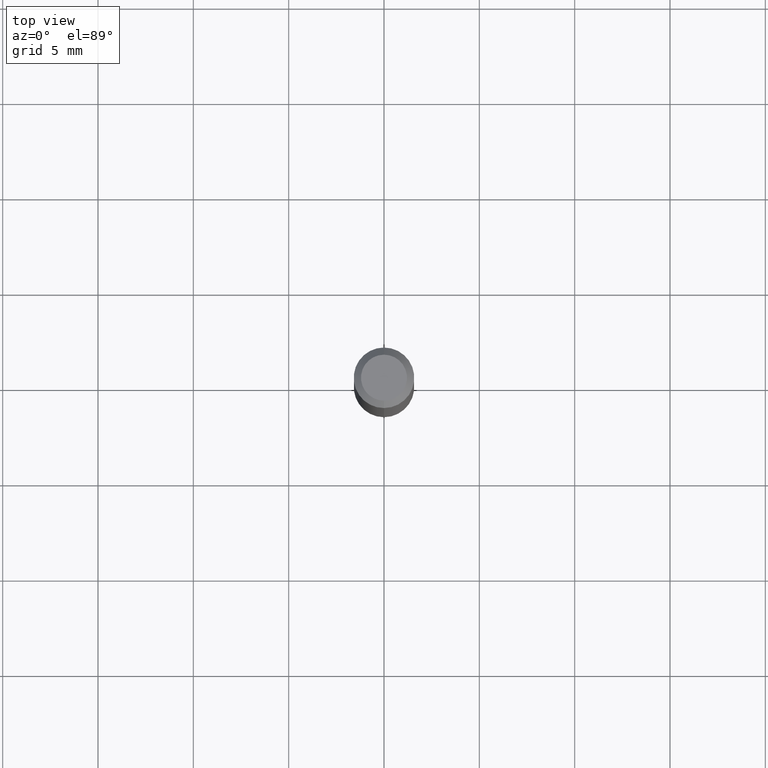
[diagram: clean part render]
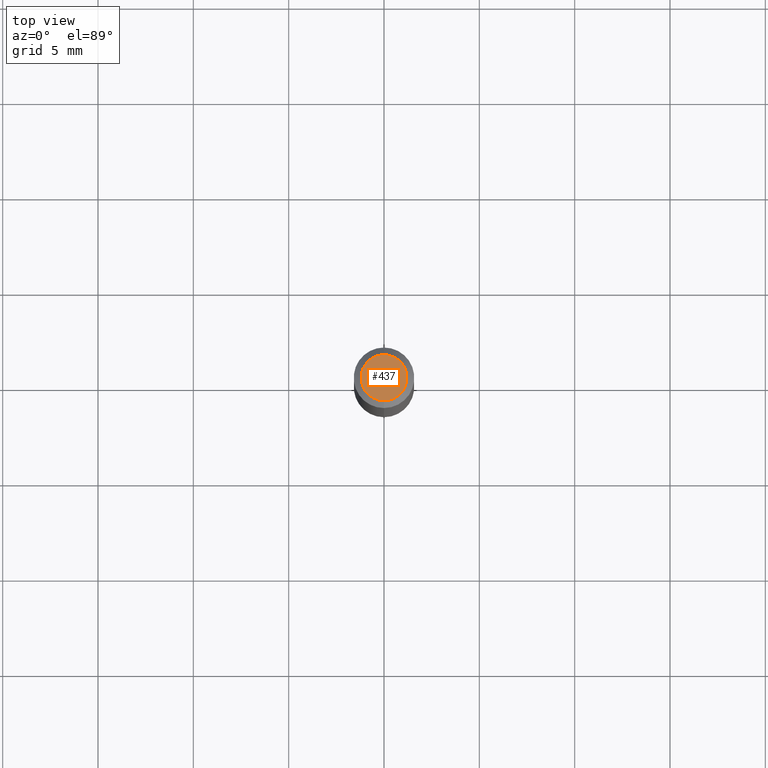
[diagram: same view with one face highlighted and labeled with its STEP entity id]
A machine part, top view. The second image highlights one B-rep face of the part: STEP entity #437.
In plain terms, the highlighted planar face has unit normal (0, -0, -1).
Its self-contained STEP definition (entity closure, byte-faithful):
#4 = EDGE_CURVE ( 'NONE', #116, #347, #269, .T. ) ;
#38 = DIRECTION ( 'NONE',  ( 6.982962677686265922E-15, 1.000000000000000000, -3.497508036328499221E-15 ) ) ;
#67 = DIRECTION ( 'NONE',  ( -2.441260385824143346E-29, 3.497508036328499615E-15, 1.000000000000000000 ) ) ;
#86 = FACE_OUTER_BOUND ( 'NONE', #155, .T. ) ;
#92 = CARTESIAN_POINT ( 'NONE',  ( 3.840629472727447874E-16, 0.04750000000000000749, 1.073394357713768884E-16 ) ) ;
#116 = VERTEX_POINT ( 'NONE', #391 ) ;
#138 = DIRECTION ( 'NONE',  ( -2.441260385824143346E-29, 3.497508036328499615E-15, 1.000000000000000000 ) ) ;
#140 = ORIENTED_EDGE ( 'NONE', *, *, #211, .T. ) ;
#155 = EDGE_LOOP ( 'NONE', ( #140, #201 ) ) ;
#163 = DIRECTION ( 'NONE',  ( 2.441260385824143346E-29, -3.497508036328499221E-15, -1.000000000000000000 ) ) ;
#201 = ORIENTED_EDGE ( 'NONE', *, *, #4, .T. ) ;
#202 = CARTESIAN_POINT ( 'NONE',  ( 3.316907271900976589E-16, 0.04750000000000000749, -2.939609797711345468E-17 ) ) ;
#211 = EDGE_CURVE ( 'NONE', #347, #116, #474, .T. ) ;
#214 = DIRECTION ( 'NONE',  ( -6.982962677686265133E-15, -1.000000000000000000, 3.497508036328499221E-15 ) ) ;
#220 = DIRECTION ( 'NONE',  ( -6.982962677686265133E-15, -1.000000000000000000, 3.497508036328499221E-15 ) ) ;
#247 = AXIS2_PLACEMENT_3D ( 'NONE', #493, #138, #220 ) ;
#268 = CARTESIAN_POINT ( 'NONE',  ( -6.676140837494191808E-45, 9.564672562740232755E-31, 2.734710674969806246E-16 ) ) ;
#269 = CIRCLE ( 'NONE', #247, 0.04750000000000000749 ) ;
#309 = AXIS2_PLACEMENT_3D ( 'NONE', #202, #163, #38 ) ;
#347 = VERTEX_POINT ( 'NONE', #92 ) ;
#391 = CARTESIAN_POINT ( 'NONE',  ( -3.773273898774340269E-16, -0.04750000000000000749, 4.396026992225843731E-16 ) ) ;
#399 = PLANE ( 'NONE',  #309 ) ;
#437 = ADVANCED_FACE ( 'NONE', ( #86 ), #399, .F. ) ;
#474 = CIRCLE ( 'NONE', #511, 0.04750000000000000749 ) ;
#493 = CARTESIAN_POINT ( 'NONE',  ( -6.676140837494191808E-45, 9.564672562740232755E-31, 2.734710674969806246E-16 ) ) ;
#511 = AXIS2_PLACEMENT_3D ( 'NONE', #268, #67, #214 ) ;